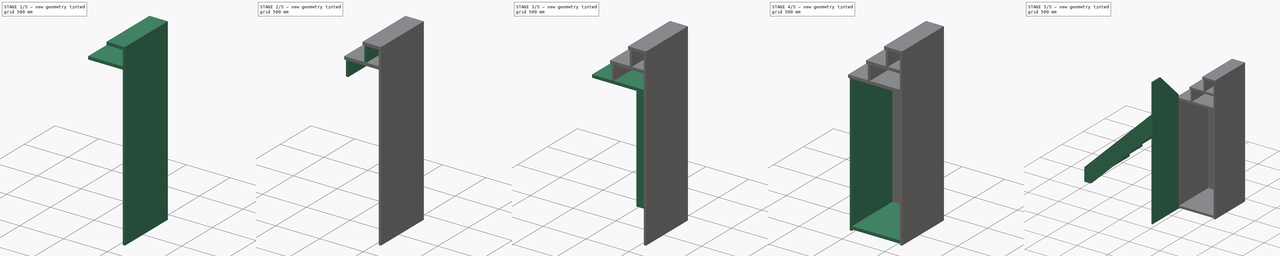
[diagram: build sequence overview — one tinted view per stage of 5, left to right]
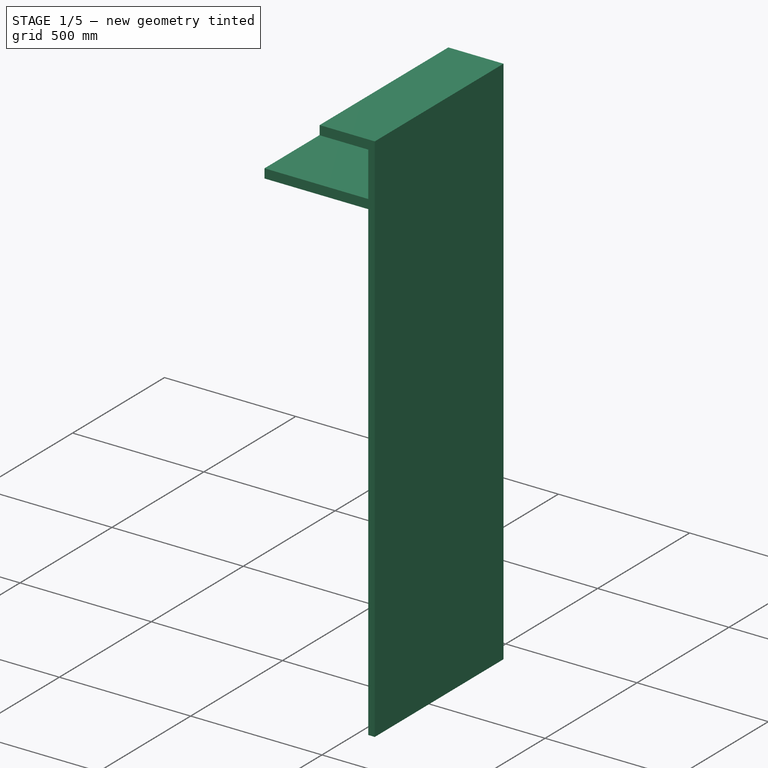
[diagram: stage 1 of 5 — iso view after this stage's code; geometry added in this stage tinted green]
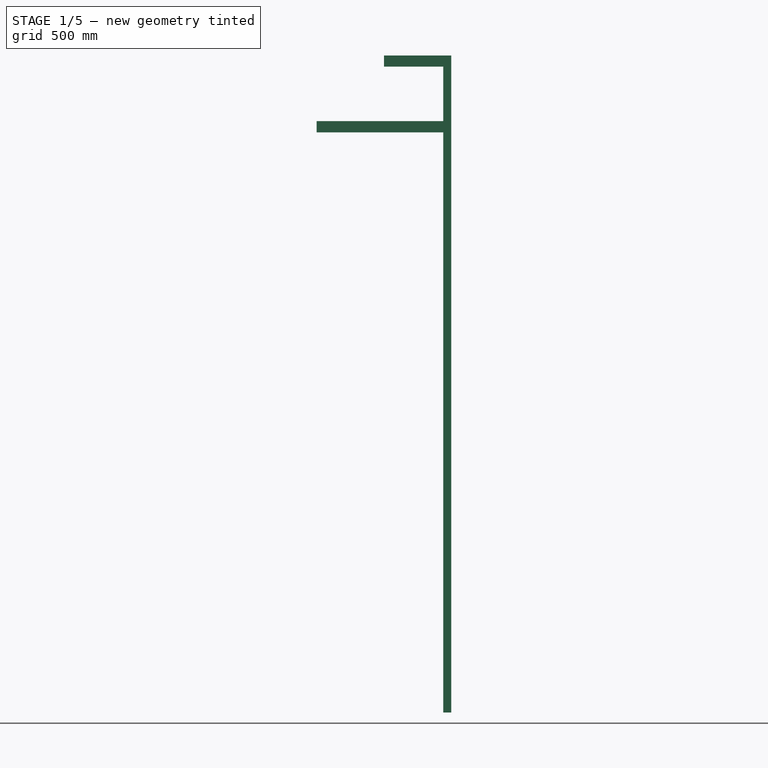
[diagram: stage 1 of 5 — front view after this stage's code; geometry added in this stage tinted green]
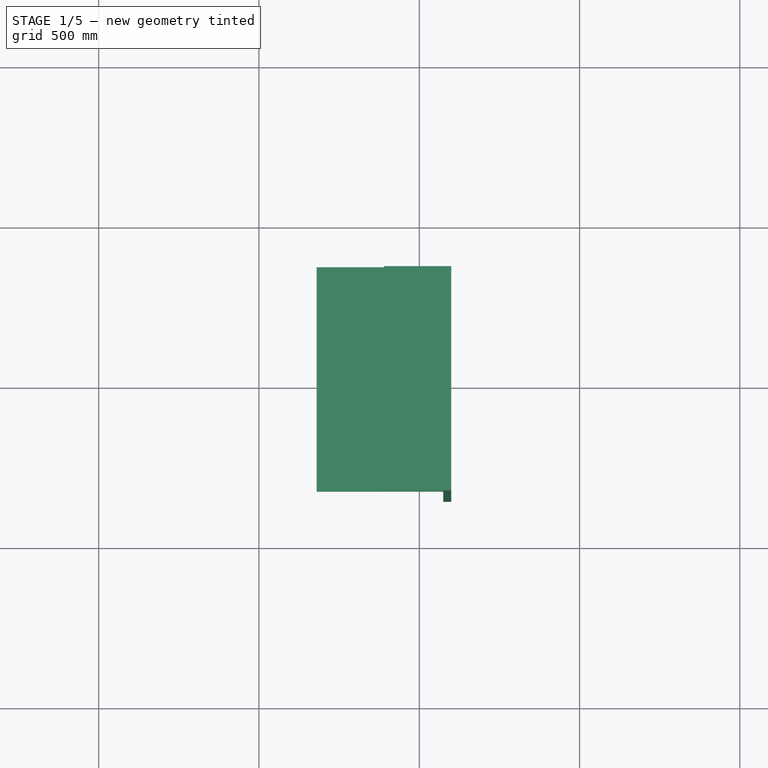
[diagram: stage 1 of 5 — top view after this stage's code; geometry added in this stage tinted green]
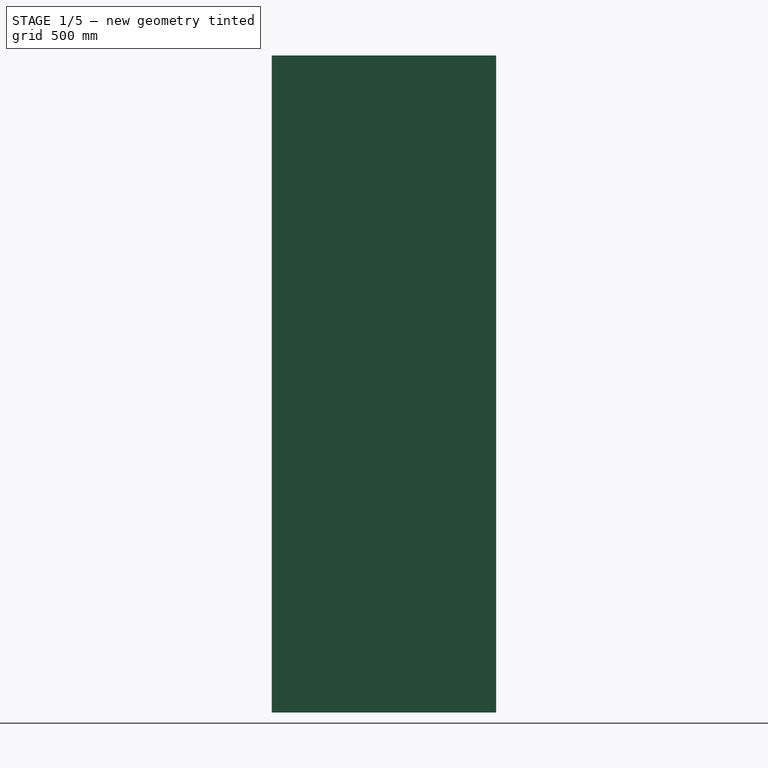
[diagram: stage 1 of 5 — right view after this stage's code; geometry added in this stage tinted green]
FCSTD DOCUMENT  (FreeCAD 0.17R11114 (Git))
Label: fridge_box_panels
License: All rights reserved
LicenseURL: http://en.wikipedia.org/wiki/All_rights_reserved
objects: Part::FeaturePython×24, TechDraw::DrawViewDimension×24, Part::Part2DObjectPython×11, App::Annotation×10, TechDraw::DrawViewAnnotation×10, Part::Extrusion×9, TechDraw::DrawGeomHatch×3, App::DocumentObjectGroup×2, TechDraw::DrawViewMulti×2, Sketcher::SketchObject×1, PartDesign::Body×1, TechDraw::DrawSVGTemplate×1, App::DocumentObjectGroupPython×1, TechDraw::DrawViewDraft×1, Part::Compound×1, TechDraw::DrawPage×1
note: 47 computed .brp shape members not serialized (recipe doc carries the construction recipe); baked Part::Feature solids carry a one-line shape summary decoded from their .brp

FEATURE [Part::Extrusion] Extrude002
  Base = -> DWire001
  Dir = (0,1,0)
  DirMode = 0
  FaceMakerClass = Part::FaceMakerBullseye
  LengthFwd = 345
  LengthRev = 355
  Solid = false
  Symmetric = false
FEATURE [Part::Extrusion] Extrude005
  Base = -> Rectangle
  Dir = (0,1,0)
  DirMode = 0
  FaceMakerClass = Part::FaceMakerBullseye
  LengthFwd = 345
  LengthRev = 355
  Solid = false
  Symmetric = false
FEATURE [Part::Extrusion] Extrude006
  Base = -> DWire007
  Dir = (0,1,0)
  DirMode = 0
  FaceMakerClass = Part::FaceMakerBullseye
  LengthFwd = 345
  LengthRev = 355
  Solid = false
  Symmetric = false
FEATURE [Part::FeaturePython] Panel007  label="step_last"  # WARN: FeaturePython — macro-defined, semantics opaque (R4)
  Area = 0
  Base = -> Extrude005
  FaceMaker = 0
  HorizontalArea = 0
  Length = 0
  MoveWithHost = false
  Normal = (0,0,1)
  PerimeterLength = 0
  Role = 0
  Sheets = 1
  Thickness = 10
  VerticalArea = 0
  WaveDirection = 0
  WaveHeight = 0
  WaveLength = 0
  WaveType = 0
  Width = 0
FEATURE [Part::FeaturePython] Panel008  label="step_middle"  # WARN: FeaturePython — macro-defined, semantics opaque (R4)
  Area = 0
  Base = -> Extrude002
  FaceMaker = 0
  HorizontalArea = 0
  Length = 0
  MoveWithHost = false
  Normal = (0,0,1)
  PerimeterLength = 0
  Role = 0
  Sheets = 1
  Thickness = 10
  VerticalArea = 0
  WaveDirection = 0
  WaveHeight = 0
  WaveLength = 0
  WaveType = 0
  Width = 0
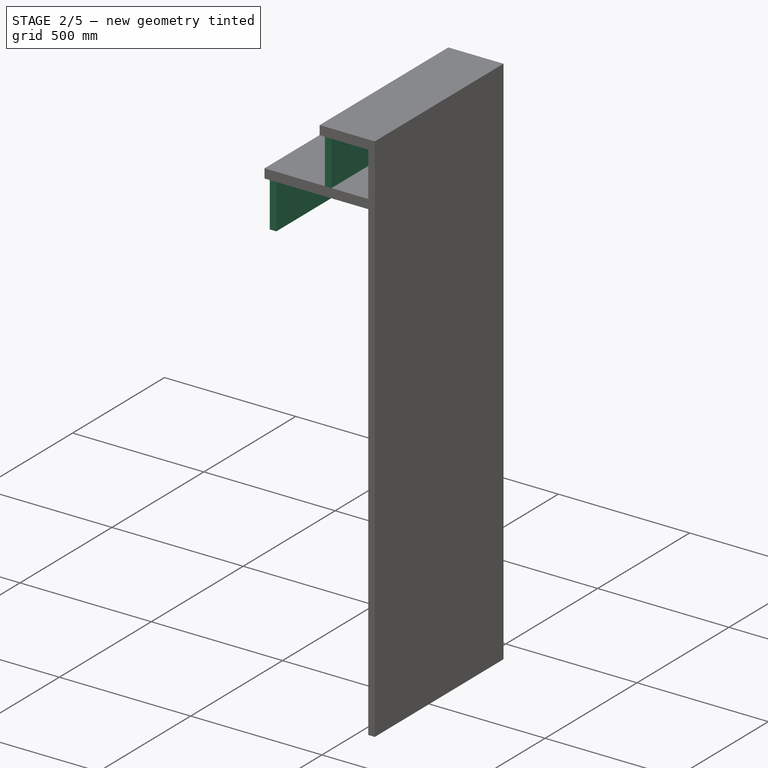
[diagram: stage 2 of 5 — iso view after this stage's code; geometry added in this stage tinted green]
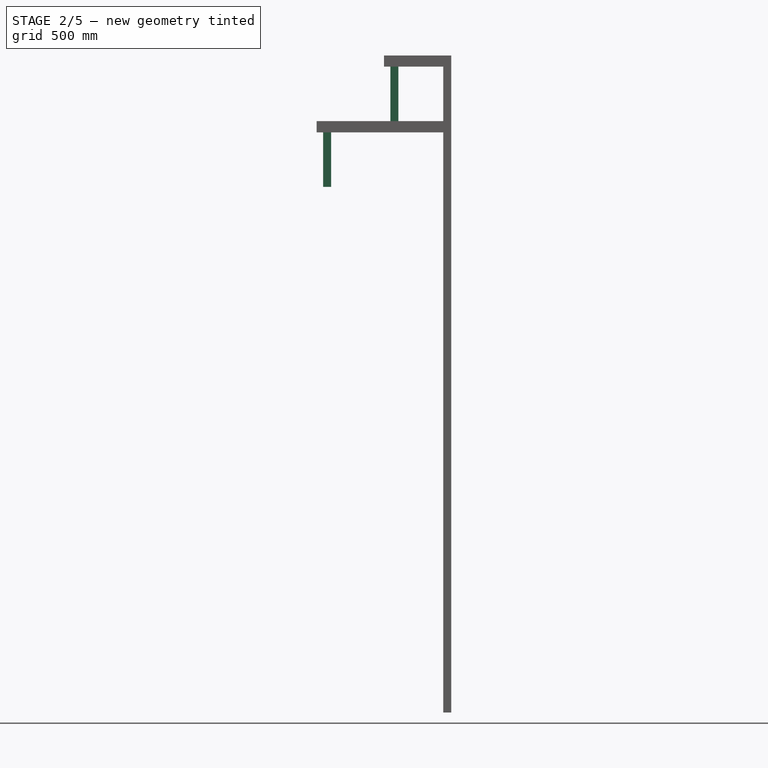
[diagram: stage 2 of 5 — front view after this stage's code; geometry added in this stage tinted green]
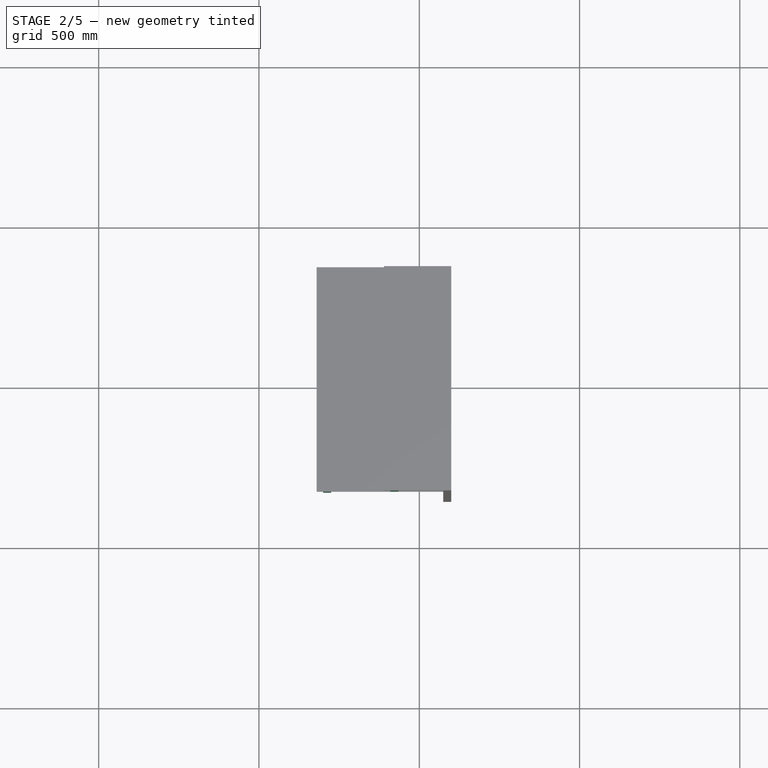
[diagram: stage 2 of 5 — top view after this stage's code; geometry added in this stage tinted green]
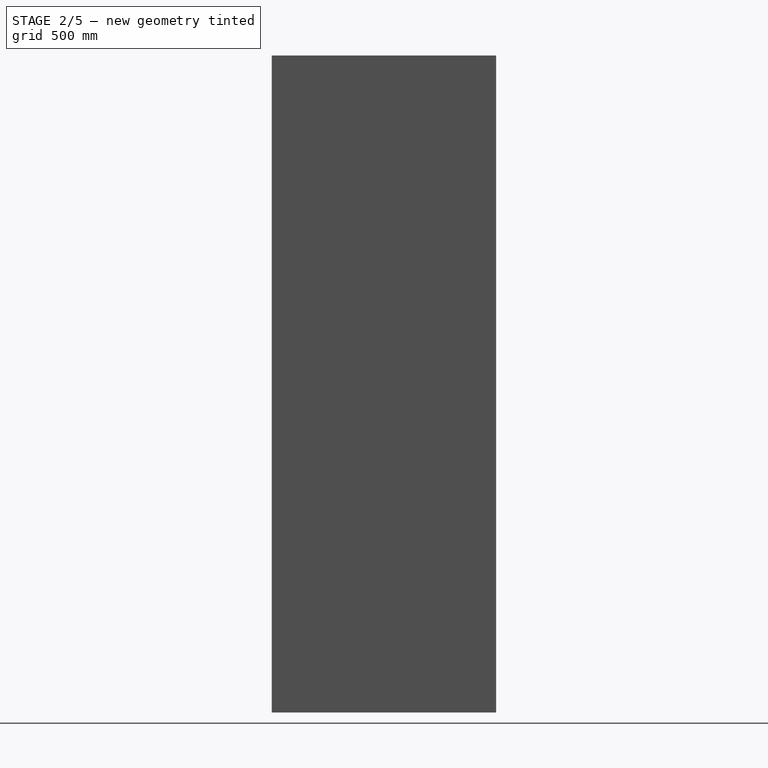
[diagram: stage 2 of 5 — right view after this stage's code; geometry added in this stage tinted green]
FEATURE [Part::Extrusion] Extrude003
  Base = -> DWire004
  Dir = (0,1,0)
  DirMode = 0
  FaceMakerClass = Part::FaceMakerBullseye
  LengthFwd = 345
  LengthRev = 355
  Solid = false
  Symmetric = false
FEATURE [Part::Extrusion] Extrude004
  Base = -> DWire005
  Dir = (0,1,0)
  DirMode = 0
  FaceMakerClass = Part::FaceMakerBullseye
  LengthFwd = 345
  LengthRev = 355
  Solid = false
  Symmetric = false
FEATURE [Part::FeaturePython] Panel005  label="raise_top"  # WARN: FeaturePython — macro-defined, semantics opaque (R4)
  Area = 0
  Base = -> Extrude003
  FaceMaker = 0
  HorizontalArea = 0
  Length = 0
  MoveWithHost = false
  Normal = (1,0,0)
  PerimeterLength = 0
  Role = 0
  Sheets = 1
  Thickness = 10
  VerticalArea = 0
  WaveDirection = 0
  WaveHeight = 0
  WaveLength = 0
  WaveType = 0
  Width = 0
FEATURE [Part::FeaturePython] Panel006  label="side_kitchen"  # WARN: FeaturePython — macro-defined, semantics opaque (R4)
  Area = 0
  Base = -> Extrude006
  FaceMaker = 0
  HorizontalArea = 0
  Length = 0
  MoveWithHost = false
  Normal = (1,0,0)
  PerimeterLength = 0
  Role = 0
  Sheets = 1
  Thickness = 10
  VerticalArea = 0
  WaveDirection = 0
  WaveHeight = 0
  WaveLength = 0
  WaveType = 0
  Width = 0
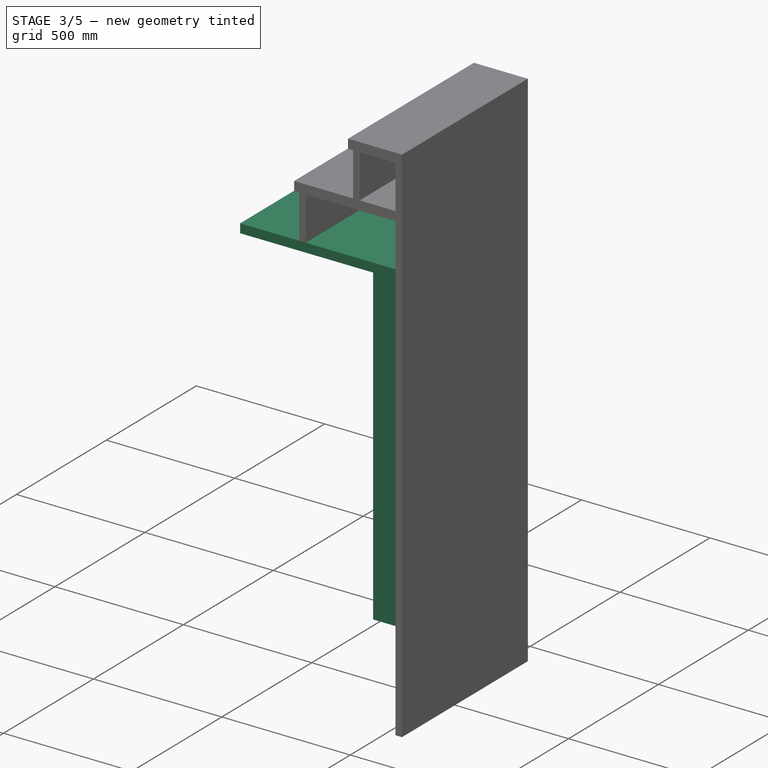
[diagram: stage 3 of 5 — iso view after this stage's code; geometry added in this stage tinted green]
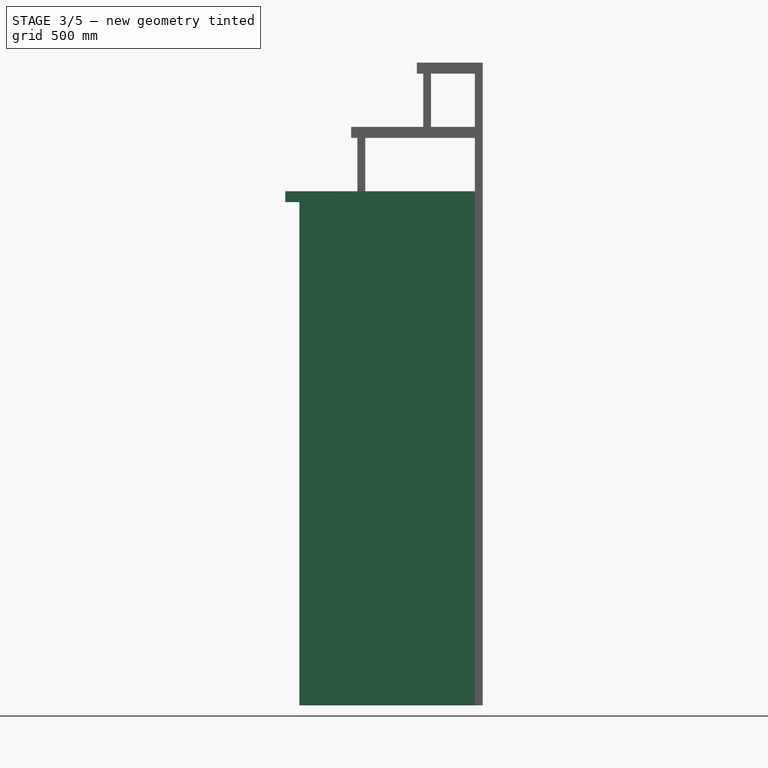
[diagram: stage 3 of 5 — front view after this stage's code; geometry added in this stage tinted green]
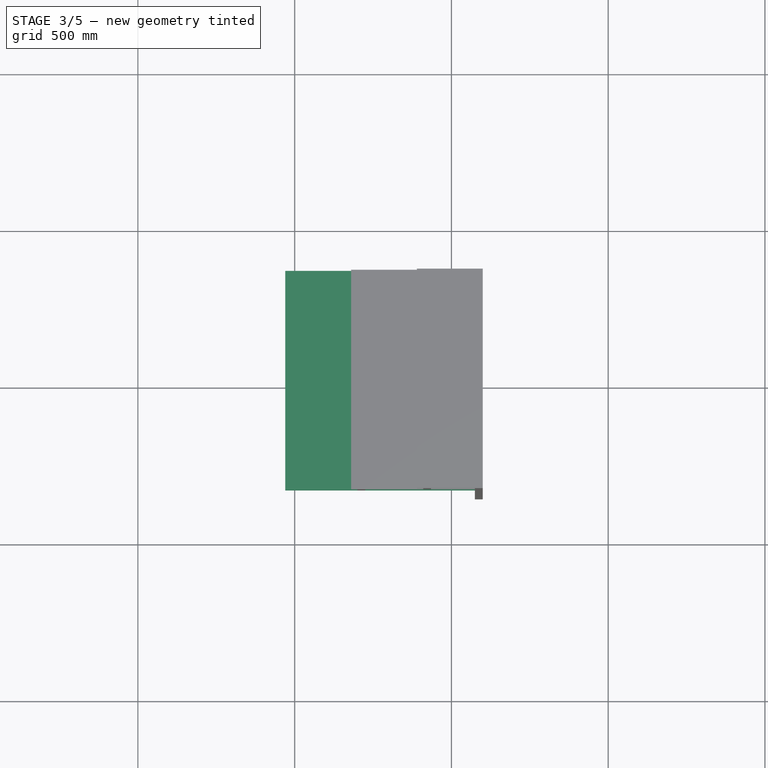
[diagram: stage 3 of 5 — top view after this stage's code; geometry added in this stage tinted green]
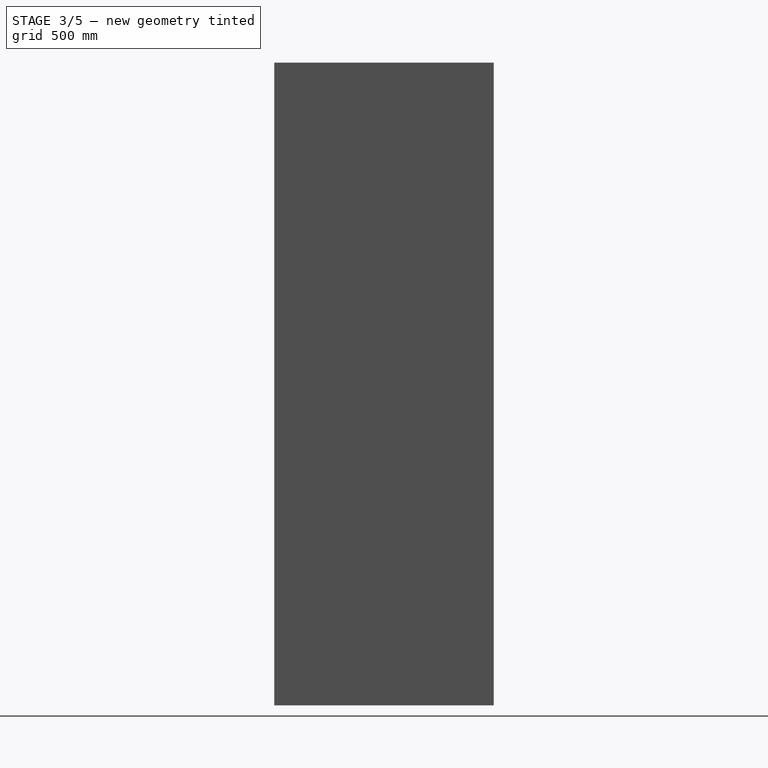
[diagram: stage 3 of 5 — right view after this stage's code; geometry added in this stage tinted green]
FEATURE [Part::Part2DObjectPython] DWire007  # Draft 2D object (typed FeaturePython)
  ChamferSize = 0
  Closed = true
  End = (2100,1e-12,2015)
  FilletRadius = 0
  Length = 4080
  MakeFace = true
  Points = (5) [(2100,4.4742e-13,2015),(2100,0,0),(2075,0,0),(2075,4.4742e-13,2015),(2100,1.37296e-12,2015)]
  Start = (2100,0,2015)
  Subdivisions = 0
FEATURE [Part::Extrusion] Extrude001
  Base = -> DWire
  Dir = (0,1,0)
  DirMode = 0
  FaceMakerClass = Part::FaceMakerBullseye
  LengthFwd = 345
  LengthRev = 355
  Solid = false
  Symmetric = false
FEATURE [Part::Part2DObjectPython] Rectangle002  # Draft 2D object (typed FeaturePython)
  ChamferSize = 0
  Columns = 1
  FilletRadius = 0
  Height = 1605
  Length = 560
  MakeFace = true
  Placement = pos=(1515,345,1605) rot=(-1,0,0;1.5708rad)
  Rows = 1
  Support = -> [Extrude001]
FEATURE [Part::Extrusion] Extrude007
  Base = -> Rectangle002
  Dir = (0,-1,0)
  DirMode = 0
  FaceMakerClass = Part::FaceMakerBullseye
  LengthFwd = 25
  LengthRev = 0
  Solid = false
  Symmetric = false
FEATURE [Part::FeaturePython] Panel002  label="side_back"  # WARN: FeaturePython — macro-defined, semantics opaque (R4)
  Area = 0
  Base = -> Extrude007
  FaceMaker = 0
  HorizontalArea = 0
  Length = 0
  MoveWithHost = false
  Normal = (0,1,0)
  PerimeterLength = 0
  Role = 0
  Sheets = 1
  Thickness = 10
  VerticalArea = 0
  WaveDirection = 0
  WaveHeight = 0
  WaveLength = 0
  WaveType = 0
  Width = 0
FEATURE [Part::FeaturePython] Panel003  label="step_roof"  # WARN: FeaturePython — macro-defined, semantics opaque (R4)
  Area = 0
  Base = -> Extrude001
  FaceMaker = 0
  HorizontalArea = 0
  Length = 0
  MoveWithHost = false
  Normal = (0,0,1)
  PerimeterLength = 0
  Role = 0
  Sheets = 1
  Thickness = 10
  VerticalArea = 0
  WaveDirection = 0
  WaveHeight = 0
  WaveLength = 0
  WaveType = 0
  Width = 0
FEATURE [Part::FeaturePython] Panel004  label="raise_bottom"  # WARN: FeaturePython — macro-defined, semantics opaque (R4)
  Area = 0
  Base = -> Extrude004
  FaceMaker = 0
  HorizontalArea = 0
  Length = 0
  MoveWithHost = false
  Normal = (1,0,0)
  PerimeterLength = 0
  Role = 0
  Sheets = 1
  Thickness = 10
  VerticalArea = 0
  WaveDirection = 0
  WaveHeight = 0
  WaveLength = 0
  WaveType = 0
  Width = 0
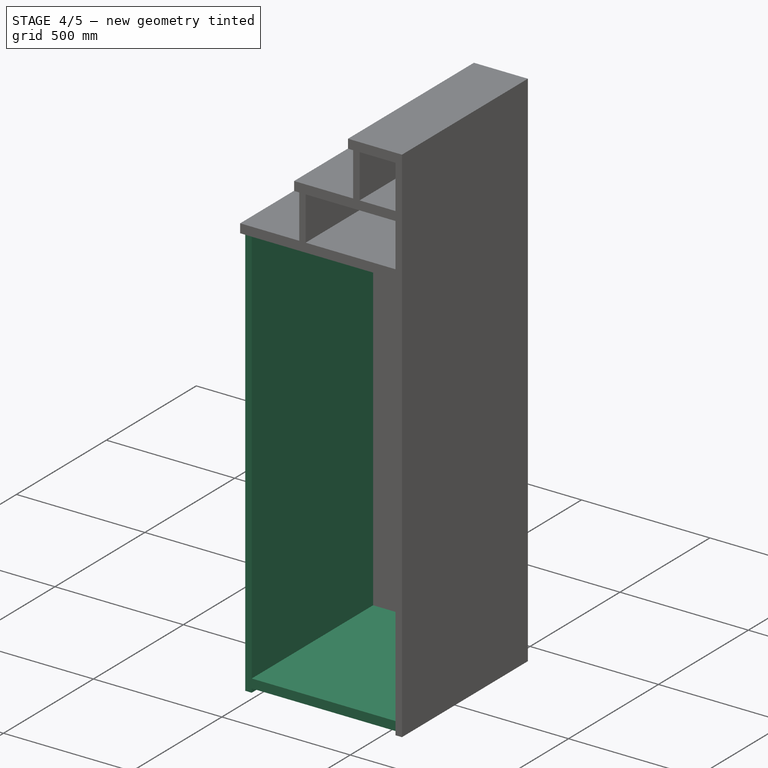
[diagram: stage 4 of 5 — iso view after this stage's code; geometry added in this stage tinted green]
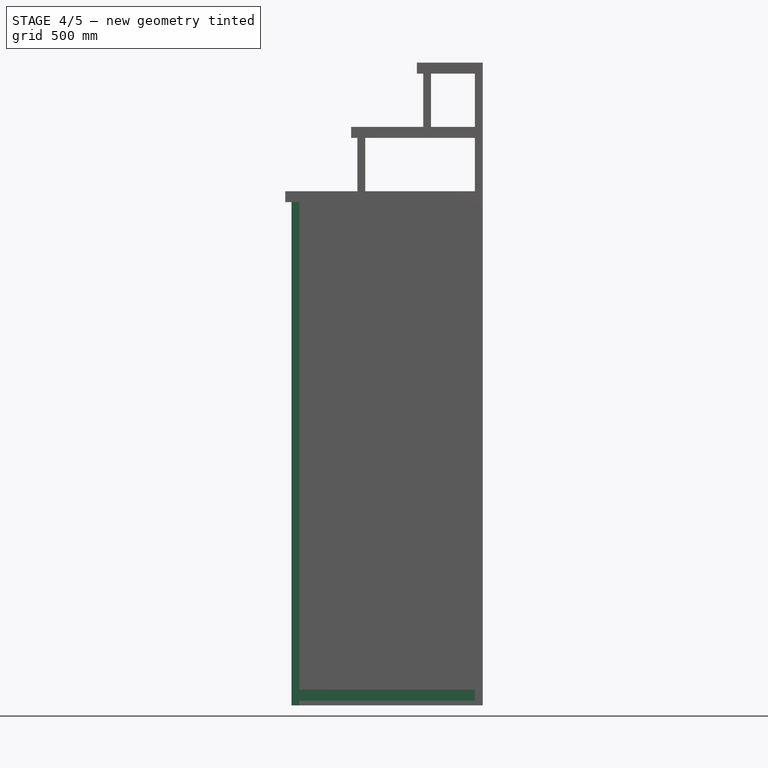
[diagram: stage 4 of 5 — front view after this stage's code; geometry added in this stage tinted green]
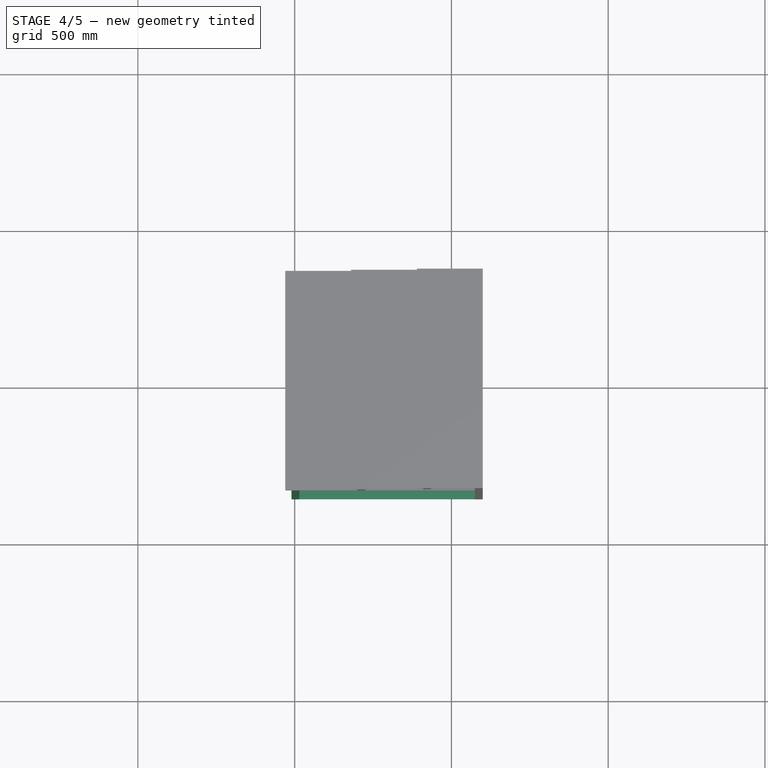
[diagram: stage 4 of 5 — top view after this stage's code; geometry added in this stage tinted green]
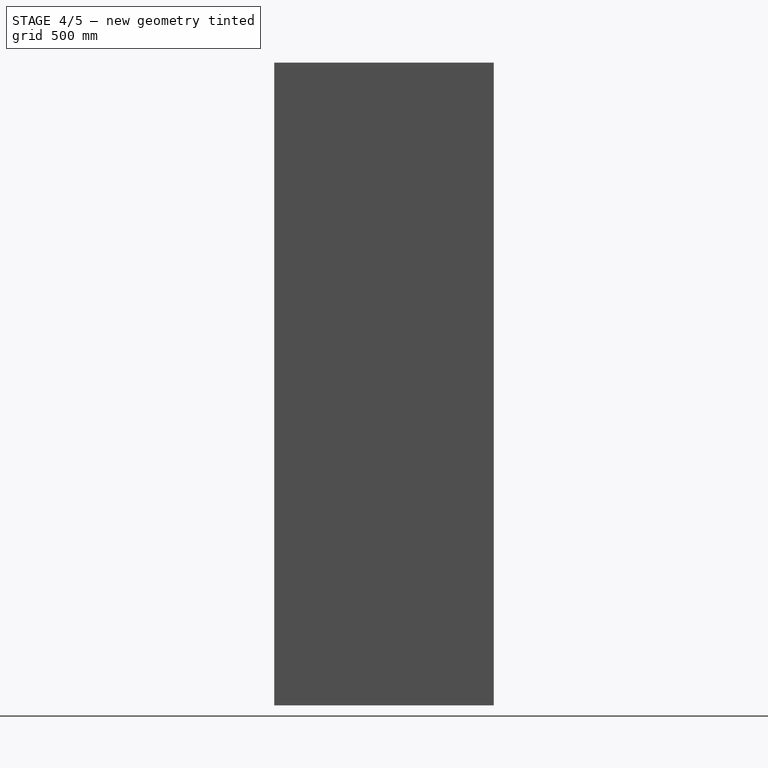
[diagram: stage 4 of 5 — right view after this stage's code; geometry added in this stage tinted green]
FEATURE [Part::Part2DObjectPython] Rectangle001  # Draft 2D object (typed FeaturePython)
  ChamferSize = 0
  Columns = 1
  FilletRadius = 0
  Height = 1605
  Length = 25
  MakeFace = true
  Placement = pos=(1490,1e-12,1605) rot=(-1,0,0;1.5708rad)
  Rows = 1
FEATURE [Part::Extrusion] Extrude
  Base = -> Rectangle001
  Dir = (0,-1,0)
  DirMode = 0
  FaceMakerClass = Part::FaceMakerBullseye
  LengthFwd = 355
  LengthRev = 345
  Solid = false
  Symmetric = false
FEATURE [Part::Extrusion] Extrude008
  Base = -> DWire006
  Dir = (0,1,0)
  DirMode = 0
  FaceMakerClass = Part::FaceMakerBullseye
  LengthFwd = 320
  LengthRev = 355
  Solid = false
  Symmetric = false
FEATURE [Part::FeaturePython] Panel  label="side_stair"  # WARN: FeaturePython — macro-defined, semantics opaque (R4)
  Area = 0
  Base = -> Extrude
  Description = description
  FaceMaker = 0
  HorizontalArea = 0
  Length = 0
  MoveWithHost = false
  Normal = (1,0,0)
  PerimeterLength = 0
  Role = 0
  Sheets = 1
  Tag = tag
  Thickness = 10
  VerticalArea = 0
  WaveDirection = 0
  WaveHeight = 0
  WaveLength = 0
  WaveType = 0
  Width = 0
FEATURE [Part::FeaturePython] Panel001  label="side_floor"  # WARN: FeaturePython — macro-defined, semantics opaque (R4)
  Area = 0
  Base = -> Extrude008
  FaceMaker = 0
  HorizontalArea = 0
  Length = 0
  MoveWithHost = false
  Normal = (0,0,1)
  PerimeterLength = 0
  Role = 0
  Sheets = 1
  Thickness = 10
  VerticalArea = 0
  WaveDirection = 0
  WaveHeight = 0
  WaveLength = 0
  WaveType = 0
  Width = 0
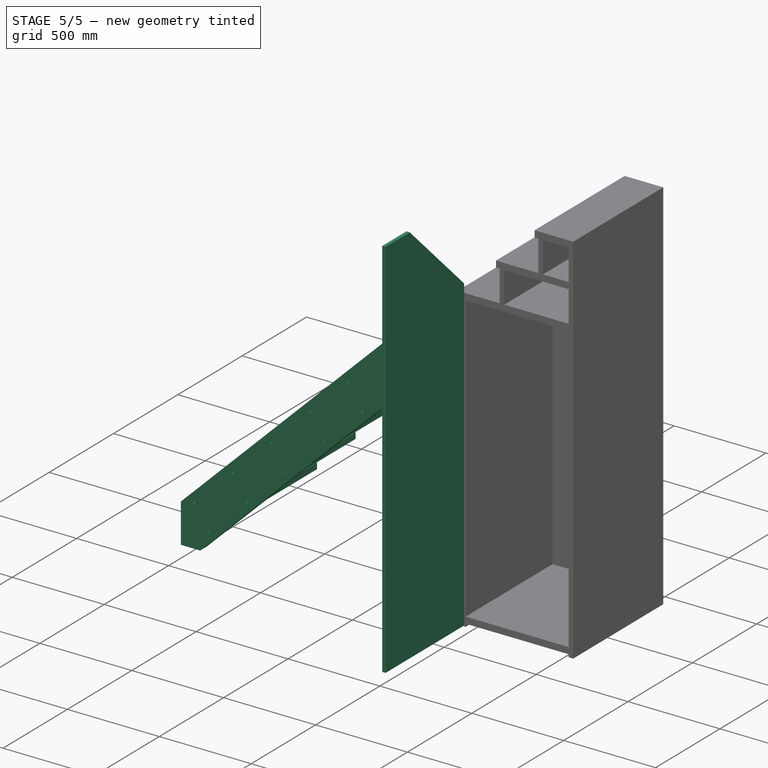
[diagram: stage 5 of 5 — iso view after this stage's code; geometry added in this stage tinted green]
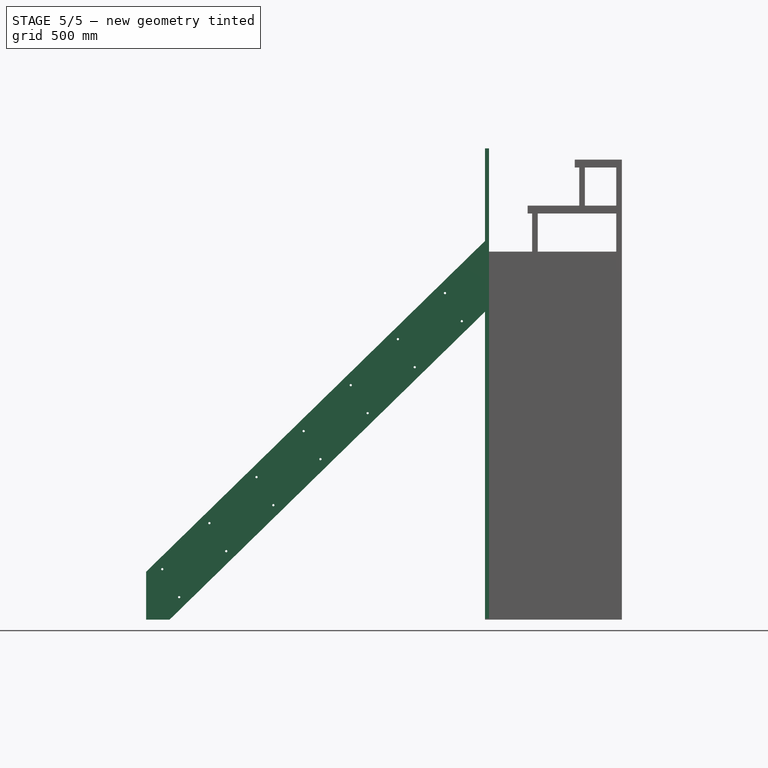
[diagram: stage 5 of 5 — front view after this stage's code; geometry added in this stage tinted green]
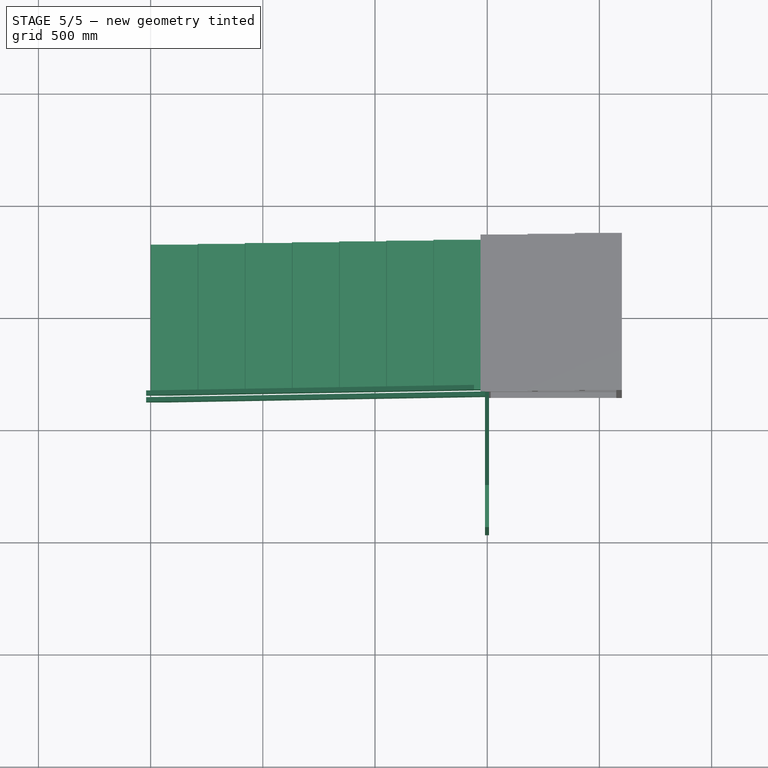
[diagram: stage 5 of 5 — top view after this stage's code; geometry added in this stage tinted green]
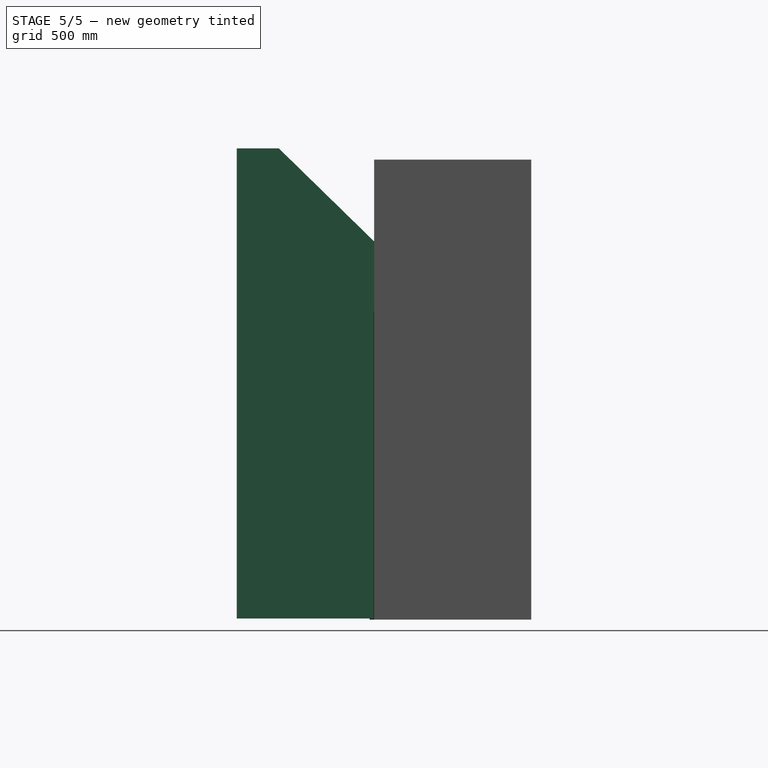
[diagram: stage 5 of 5 — right view after this stage's code; geometry added in this stage tinted green]
FEATURE [Part::FeaturePython] stair_profile_01  # a2plus imported part (geometry in sourceFile) (typed FeaturePython)
  fixedPosition = true
  sourceFile = stair_profile.fcstd
  timeLastImport = 1.4938e+09
  updateColors = true
FEATURE [Sketcher::SketchObject] Sketch001
  Placement = pos=(0,0,0) rot=(1,0,0;1.5708rad)
  sketch-geometry (37):
    g0: LineSegment [constr] StartX=0 StartY=0 StartZ=0 EndX=2100 EndY=0 EndZ=0
    g1: LineSegment [constr] StartX=1490 StartY=1605 StartZ=0 EndX=1490 EndY=0 EndZ=0
    g2: LineSegment StartX=1470 StartY=1640 StartZ=0 EndX=2075 EndY=1640 EndZ=0
    g3: LineSegment StartX=2075 StartY=1640 StartZ=0 EndX=2075 EndY=1605 EndZ=0
    g4: LineSegment StartX=2075 StartY=1605 StartZ=0 EndX=1470 EndY=1605 EndZ=0
    g5: LineSegment StartX=1470 StartY=1605 StartZ=0 EndX=1470 EndY=1640 EndZ=0
    g6: LineSegment StartX=1680 StartY=1845 StartZ=0 EndX=2075 EndY=1845 EndZ=0
    g7: LineSegment StartX=2075 StartY=1845 StartZ=0 EndX=2075 EndY=1810 EndZ=0
    g8: LineSegment StartX=2075 StartY=1810 StartZ=0 EndX=1680 EndY=1810 EndZ=0
    g9: LineSegment StartX=1680 StartY=1810 StartZ=0 EndX=1680 EndY=1845 EndZ=0
    g10: LineSegment StartX=1890 StartY=2050 StartZ=0 EndX=2100 EndY=2050 EndZ=0
    g11: LineSegment StartX=2100 StartY=2050 StartZ=0 EndX=2100 EndY=2015 EndZ=0
    g12: LineSegment StartX=2100 StartY=2015 StartZ=0 EndX=1890 EndY=2015 EndZ=0
    g13: LineSegment StartX=1890 StartY=2015 StartZ=0 EndX=1890 EndY=2050 EndZ=0
    g14: LineSegment [constr] StartX=2100 StartY=2105 StartZ=0 EndX=3350 EndY=2105 EndZ=0
    g15: LineSegment [constr] StartX=3350 StartY=2260 StartZ=0 EndX=2100 EndY=2260 EndZ=0
    g16: LineSegment [constr] StartX=2100 StartY=2260 StartZ=0 EndX=2100 EndY=2105 EndZ=0
    g17: LineSegment StartX=2100 StartY=2015 StartZ=0 EndX=2075 EndY=2015 EndZ=0
    g18: LineSegment StartX=2075 StartY=2015 StartZ=0 EndX=2075 EndY=0 EndZ=0
    g19: LineSegment StartX=2075 StartY=0 StartZ=0 EndX=2100 EndY=0 EndZ=0
    g20: LineSegment StartX=2100 StartY=0 StartZ=0 EndX=2100 EndY=2015 EndZ=0
    g21: LineSegment StartX=1490 StartY=0 StartZ=0 EndX=1515 EndY=0 EndZ=0
    g22: LineSegment StartX=1515 StartY=0 StartZ=0 EndX=1515 EndY=1605 EndZ=0
    g23: LineSegment StartX=1515 StartY=1605 StartZ=0 EndX=1490 EndY=1605 EndZ=0
    g24: LineSegment StartX=1490 StartY=1605 StartZ=0 EndX=1490 EndY=0 EndZ=0
    g25: LineSegment StartX=1910 StartY=2015 StartZ=0 EndX=1935 EndY=2015 EndZ=0
    g26: LineSegment StartX=1935 StartY=2015 StartZ=0 EndX=1935 EndY=1845 EndZ=0
    g27: LineSegment StartX=1935 StartY=1845 StartZ=0 EndX=1910 EndY=1845 EndZ=0
    g28: LineSegment StartX=1910 StartY=1845 StartZ=0 EndX=1910 EndY=2015 EndZ=0
    g29: LineSegment StartX=1700 StartY=1810 StartZ=0 EndX=1725 EndY=1810 EndZ=0
    g30: LineSegment StartX=1725 StartY=1810 StartZ=0 EndX=1725 EndY=1640 EndZ=0
    g31: LineSegment StartX=1725 StartY=1640 StartZ=0 EndX=1700 EndY=1640 EndZ=0
    g32: LineSegment StartX=1700 StartY=1640 StartZ=0 EndX=1700 EndY=1810 EndZ=0
    g33: LineSegment StartX=1515 StartY=50 StartZ=0 EndX=2075 EndY=50 EndZ=0
    g34: LineSegment StartX=2075 StartY=50 StartZ=0 EndX=2075 EndY=15 EndZ=0
    g35: LineSegment StartX=2075 StartY=15 StartZ=0 EndX=1515 EndY=15 EndZ=0
    g36: LineSegment StartX=1515 StartY=15 StartZ=0 EndX=1515 EndY=50 EndZ=0
  constraints (114):
    c: Vertical(g1)
    c: Horizontal(g2)
    c: Coincident(g2,g3)
    c: Vertical(g3)
    c: Coincident(g3,g4)
    c: Horizontal(g4)
    c: Coincident(g4,g5)
    c: Vertical(g5)
    c: Coincident(g5,g2)
    c: Horizontal(g6)
    c: Coincident(g6,g7)
    c: Vertical(g7)
    c: Coincident(g7,g8)
    c: Horizontal(g8)
    c: Coincident(g8,g9)
    c: Vertical(g9)
    c: Coincident(g9,g6)
    c: Horizontal(g10)
    c: Coincident(g10,g11)
    c: Vertical(g11)
    c: Coincident(g11,g12)
    c: Horizontal(g12)
    c: Coincident(g12,g13)
    c: Vertical(g13)
    c: Coincident(g13,g10)
    c: Horizontal(g14)
    c: Horizontal(g15)
    c: Coincident(g15,g16)
    c: Vertical(g16)
    c: Coincident(g16,g14)
    c: Coincident(g-1,g0)
    c: Horizontal(g0)
    c: DistanceX(g-1,g15) = 2100
    c: DistanceY(g14,g15) = 155
    c: PointOnObject(g0,g16)
    c: DistanceX(g15,g15) = 1250
    c: DistanceY(g0,g15) = 2260
    c: DistanceX(g-1,g1) = 1490
    c: PointOnObject(g1,g0)
    c: PointOnObject(g10,g16)
    c: DistanceY(g13,g13) = 35
    c: DistanceY(g9,g9) = 35
    c: DistanceY(g5,g5) = 35
    c: Coincident(g17,g18)
    c: Coincident(g18,g19)
    c: Coincident(g19,g20)
    c: Coincident(g20,g17)
    c: Horizontal(g17)
    c: Horizontal(g19)
    c: Vertical(g18)
    c: Vertical(g20)
    c: PointOnObject(g18,g0)
    c: DistanceX(g19,g19) = 25
    c: Coincident(g17,g11)
    c: Coincident(g21,g22)
    c: Coincident(g22,g23)
    c: Coincident(g23,g24)
    c: Coincident(g24,g21)
    c: Horizontal(g21)
    c: Horizontal(g23)
    c: Vertical(g22)
    c: Vertical(g24)
    c: DistanceX(g21,g21) = 25
    c: Coincident(g21,g1)
    c: DistanceX(g2) = 1470
    c: DistanceY(g2) = 1640
    c: PointOnObject(g23,g4)
    c: PointOnObject(g2,g18)
    c: PointOnObject(g6,g18)
    c: DistanceY(g2,g6) = 205
    c: DistanceY(g6,g10) = 205
    c: DistanceX(g2,g6) = 210
    c: DistanceX(g10,g10) = 210
    c: DistanceX(g6,g10) = 210
    c: DistanceX(g15,g14) = 0
    c: PointOnObject(g1,g4)
    c: Coincident(g25,g26)
    c: Coincident(g26,g27)
    c: Coincident(g27,g28)
    c: Coincident(g28,g25)
    c: Horizontal(g25)
    c: Horizontal(g27)
    c: Vertical(g26)
    c: Vertical(g28)
    c: Coincident(g29,g30)
    c: Coincident(g30,g31)
    c: Coincident(g31,g32)
    c: Coincident(g32,g29)
    c: Horizontal(g29)
    c: Horizontal(g31)
    c: Vertical(g30)
    c: Vertical(g32)
    c: DistanceX(g27,g27) = 25
    c: DistanceX(g31,g31) = 25
    c: PointOnObject(g29,g8)
    c: PointOnObject(g30,g2)
    c: PointOnObject(g26,g6)
    c: PointOnObject(g25,g12)
    c: DistanceX(g12,g25) = 20
    c: DistanceX(g8,g29) = 20
    c: Coincident(g33,g34)
    c: Coincident(g34,g35)
    c: Coincident(g35,g36)
    c: Coincident(g36,g33)
    c: Horizontal(g33)
    c: Horizontal(g35)
    c: Vertical(g34)
    c: Vertical(g36)
    c: PointOnObject(g33,g22)
    c: PointOnObject(g33,g18)
    c: DistanceY(g35,g33) = 35
    c: DistanceY(g21,g35) = 15
    c: DistanceY(g33,g3) = 1555
    c: DistanceX(g22,g3) = 560
FEATURE [PartDesign::Body] Body
  Group = -> [Sketch001]
  Origin = -> BodyOrigin
FEATURE [Part::Part2DObjectPython] DWire  # Draft 2D object (typed FeaturePython)
  ChamferSize = 0
  Closed = true
  End = (1470,1e-12,1605)
  FilletRadius = 0
  Length = 1280
  MakeFace = true
  Points = (4) [(1470,1.09215e-12,1640),(2075,1.09215e-12,1640),(2075,1.06938e-12,1605),(1470,1.06938e-12,1605)]
  Start = (1470,1e-12,1640)
  Subdivisions = 0
FEATURE [Part::Part2DObjectPython] DWire001  # Draft 2D object (typed FeaturePython)
  ChamferSize = 0
  Closed = true
  End = (1680,1e-12,1810)
  FilletRadius = 0
  Length = 860
  MakeFace = true
  Points = (4) [(1680,1.22867e-12,1845),(2075,1.22867e-12,1845),(2075,1.2059e-12,1810),(1680,1.2059e-12,1810)]
  Start = (1680,1e-12,1845)
  Subdivisions = 0
FEATURE [Part::Part2DObjectPython] DWire004  # Draft 2D object (typed FeaturePython)
  ChamferSize = 0
  Closed = true
  End = (1910,1e-12,1845)
  FilletRadius = 0
  Length = 390
  MakeFace = true
  Points = (4) [(1910,1.34242e-12,2015),(1935,1.34242e-12,2015),(1935,1.22867e-12,1845),(1910,1.22867e-12,1845)]
  Start = (1910,1e-12,2015)
  Subdivisions = 0
FEATURE [Part::Part2DObjectPython] DWire005  # Draft 2D object (typed FeaturePython)
  ChamferSize = 0
  Closed = true
  End = (1700,1e-12,1640)
  FilletRadius = 0
  Length = 390
  MakeFace = true
  Points = (4) [(1700,1.2059e-12,1810),(1725,1.2059e-12,1810),(1725,1.09215e-12,1640),(1700,1.09215e-12,1640)]
  Start = (1700,1e-12,1810)
  Subdivisions = 0
FEATURE [Part::Part2DObjectPython] DWire006  # Draft 2D object (typed FeaturePython)
  ChamferSize = 0
  Closed = true
  End = (1515,0,15)
  FilletRadius = 0
  Length = 1190
  MakeFace = true
  Points = (4) [(1515,3.31022e-14,50),(2075,3.31022e-14,50),(2075,1.03307e-14,15),(1515,1.03307e-14,15)]
  Start = (1515,0,50)
  Subdivisions = 0
FEATURE [Part::Part2DObjectPython] Rectangle  # Draft 2D object (typed FeaturePython)
  ChamferSize = 0
  Columns = 1
  FilletRadius = 0
  Height = 35
  Length = 210
  MakeFace = true
  Placement = pos=(1890,1e-12,2050) rot=(-1,0,0;1.5708rad)
  Rows = 1
FEATURE [Part::FeaturePython] step_01  # a2plus imported part (geometry in sourceFile) (typed FeaturePython)
  fixedPosition = false
  sourceFile = step.fcstd
  timeLastImport = 1.4938e+09
  updateColors = true
FEATURE [Part::FeaturePython] PanelView  label="View of side_stair"  # WARN: FeaturePython — macro-defined, semantics opaque (R4)
  FontFile = utilities/1CamBam_Stick_3.ttf
  Placement = pos=(-1969.35,-352.3,0) rot=(0,0,1;1.5708rad)
  Source = -> Panel
  TagPosition = (0,0,0)
  TagRotation = -90
  TagSize = 13
FEATURE [Part::FeaturePython] PanelView001  label="View of step_last"  # WARN: FeaturePython — macro-defined, semantics opaque (R4)
  FontFile = utilities/1CamBam_Stick_3.ttf
  Placement = pos=(500.65,1250.2,0) rot=(0,0,1;1.5708rad)
  Source = -> Panel007
  TagPosition = (0,0,0)
  TagRotation = -90
  TagSize = 20
FEATURE [Part::FeaturePython] PanelView002  label="View of raise_top"  # WARN: FeaturePython — macro-defined, semantics opaque (R4)
  FontFile = utilities/1CamBam_Stick_3.ttf
  Placement = pos=(-1969.35,1495.2,0) rot=(0,0,1;1.5708rad)
  Source = -> Panel005
  TagPosition = (0,0,0)
  TagRotation = -90
  TagSize = 20
FEATURE [Part::FeaturePython] PanelView003  label="View of side_back"  # WARN: FeaturePython — macro-defined, semantics opaque (R4)
  FontFile = utilities/1CamBam_Stick_3.ttf
  Placement = pos=(-1139.35,-352.3,0) rot=(0,0,1;0rad)
  Source = -> Panel002
  TagPosition = (0,0,0)
  TagRotation = 0
  TagSize = 13
  expr: TagSize = PanelView.TagSize
FEATURE [Part::FeaturePython] PanelView004  label="View of side_floor"  # WARN: FeaturePython — macro-defined, semantics opaque (R4)
  FontFile = utilities/1CamBam_Stick_3.ttf
  Placement = pos=(-1969.35,930.2,0) rot=(0,0,1;1.5708rad)
  Source = -> Panel001
  TagPosition = (0,0,0)
  TagRotation = -90
  TagSize = 20
FEATURE [Part::FeaturePython] PanelView005  label="View of side_kitchen"  # WARN: FeaturePython — macro-defined, semantics opaque (R4)
  FontFile = utilities/1CamBam_Stick_3.ttf
  Placement = pos=(-309.35,-147.3,0) rot=(0,0,1;1.5708rad)
  Source = -> Panel006
  TagPosition = (0,0,0)
  TagRotation = -90
  TagSize = 10
FEATURE [Part::FeaturePython] PanelView006  label="View of step_roof"  # WARN: FeaturePython — macro-defined, semantics opaque (R4)
  FontFile = utilities/1CamBam_Stick_3.ttf
  Placement = pos=(-1118.6,952.7,0) rot=(0,0,1;1.5708rad)
  Source = -> Panel003
  TagPosition = (0,0,0)
  TagRotation = -90
  TagSize = 20
FEATURE [Part::FeaturePython] PanelView007  label="View of step_middle"  # WARN: FeaturePython — macro-defined, semantics opaque (R4)
  FontFile = utilities/1CamBam_Stick_3.ttf
  Placement = pos=(-309.35,1257.7,0) rot=(0,0,1;1.5708rad)
  Source = -> Panel008
  TagPosition = (0,0,0)
  TagRotation = -90
  TagSize = 20
FEATURE [Part::FeaturePython] PanelView008  label="View of raise_bottom"  # WARN: FeaturePython — macro-defined, semantics opaque (R4)
  FontFile = utilities/1CamBam_Stick_3.ttf
  Placement = pos=(-1118.6,1540.2,0) rot=(0,0,1;1.5708rad)
  Source = -> Panel004
  TagPosition = (0,0,0)
  TagRotation = -90
  TagSize = 20
FEATURE [TechDraw::DrawSVGTemplate] Template
  EditableTexts = 5cm_scaled_value=50cm; Architect_2=MARZIA FILATRELLA; Architect_3=MARCO FERRARA; Board_no=A711; Date=3.5.2017; Date_1=3.5.2017; Drawing_title_2=BOX FRIGO; Drawing_title_3=ABACO ELEMENTI; Filename=FRIDGE_BOX_PANEL.FCSTD; Project_title_2=CASA VACANZE; Project_title_3=A SESTRI; Project_title_4=SCALA INTERNA; Revision=1.0; Scale=1:10; Sheet_of_sheets=2 DI 7 (nd); Size=A2; Version_1=1.0
  Height = 420
  Orientation = 1
  Width = 594
FEATURE [App::Annotation] Text
  LabelText = 8.FIANCO CUCINA | Listellare laminato bianco | sp. 25 mm
  Position = (-309.35,-147.3,0)
  expr: Position.y = PanelView005.Placement.Base.y / 1mm
  expr: Position.x = PanelView005.Placement.Base.x / 1mm
FEATURE [App::Annotation] Text001
  LabelText = 6.FONDO BOX | Listellare laminato bianco | sp. 25 mm
  Position = (-1139.35,-352.3,0)
  expr: Position.y = PanelView003.Placement.Base.y / 1mm
  expr: Position.x = PanelView003.Placement.Base.x / 1mm
FEATURE [App::Annotation] Text002
  LabelText = 3. FIANCO SCALA | Listellare laminato bianco | sp. 25 mm
  Position = (-1969.35,-352.3,0)
  expr: Position.y = PanelView.Placement.Base.y / 1mm
  expr: Position.x = PanelView.Placement.Base.x / 1mm
FEATURE [App::Annotation] Text003
  LabelText = 5.TETTO - GRADINO | Massello vernic. trasp. | sp. 35 mm
  Position = (-1118.6,952.7,0)
  expr: Position.y = PanelView006.Placement.Base.y / 1mm
  expr: Position.x = PanelView006.Placement.Base.x / 1mm
FEATURE [Part::Part2DObjectPython] Line  # Draft 2D object (typed FeaturePython)
  ChamferSize = 0
  Closed = false
  End = (850.65,-1344.65,0)
  FilletRadius = 0
  Length = 3170
  MakeFace = true
  Placement = pos=(0,-189.848,0) rot=(0,0,1;0rad)
  Points = (2) [(-2319.35,-1154.8,0),(850.65,-1154.8,0)]
  Start = (-2319.35,-1344.65,0)
  Subdivisions = 0
FEATURE [Part::Part2DObjectPython] Line001  # Draft 2D object (typed FeaturePython)
  ChamferSize = 0
  Closed = false
  End = (-2590.99,-1154.8,0)
  FilletRadius = 0
  Length = 2780
  MakeFace = true
  Placement = pos=(-959.144,0,0) rot=(0,0,1;0rad)
  Points = (2) [(-1631.85,1625.2,-2.27e-13),(-1631.85,-1154.8,0)]
  Start = (-2590.99,1625.2,0)
  Subdivisions = 0
FEATURE [App::Annotation] Text004
  LabelText = 7.GRADINO INTERMEDIO | Massello vernic. trasp. | sp. 35 mm
  Position = (-309.35,1257.7,0)
  expr: Position.y = PanelView007.Placement.Base.y / 1mm
  expr: Position.x = PanelView007.Placement.Base.x / 1mm
FEATURE [App::Annotation] Text005
  LabelText = 9. ULTIMO GRADINO | Massello vernic. trasp. | sp. 35 mm
  Position = (500.65,1250.2,0)
  expr: Position.y = PanelView001.Placement.Base.y / 1mm
  expr: Position.x = PanelView001.Placement.Base.x / 1mm
FEATURE [App::Annotation] Text006
  LabelText = 1. FRONTALINO SUPERIORE | Listellare laminato bianco | sp. 25 mm
  Position = (-1969.35,1495.2,0)
  expr: Position.y = PanelView002.Placement.Base.y / 1mm
  expr: Position.x = PanelView002.Placement.Base.x / 1mm
FEATURE [App::Annotation] Text007
  LabelText = 4.FRONTALINO INFERIORE | Listellare laminato bianco | sp. 25 mm
  Position = (-1118.6,1540.2,0)
  expr: Position.y = PanelView008.Placement.Base.y / 1mm
  expr: Position.x = PanelView008.Placement.Base.x / 1mm
FEATURE [App::Annotation] Text008
  LabelText = 2. BASE FRIGO | Listellare laminato bianco | sp. 25 mm (o altro spessore | adeguato)
  Position = (-1969.35,930.2,0)
  expr: Position.y = PanelView004.Placement.Base.y / 1mm
  expr: Position.x = PanelView004.Placement.Base.x / 1mm
FEATURE [Part::FeaturePython] double_beam_01  # a2plus imported part (geometry in sourceFile) (typed FeaturePython)
  fixedPosition = false
  sourceFile = double_beam.fcstd
  timeLastImport = 1.4938e+09
  updateColors = true
FEATURE [App::DocumentObjectGroup] Group001  label="utilities"
  Group = -> [stair_profile_01,Body,step_01,Line,Line001,double_beam_01]
FEATURE [App::Annotation] Text009
  LabelText = 10. ANTA BOX | Pannello in mdf | (o altro materiale adatto) | da rifinire esternamente | con strato di cementite | sp. 18 mm (o altro spessore | non superiore a 20 mm)
  Position = (545.65,-104.8,0)
  expr: Position.y = PanelView009.Placement.Base.y / 1mm
  expr: Position.x = PanelView009.Placement.Base.x / 1mm
FEATURE [Part::FeaturePython] fridge_box_door_01  # a2plus imported part (geometry in sourceFile) (typed FeaturePython)
  Placement = pos=(1865,1133,0) rot=(0,0,-1;1.5708rad)
  fixedPosition = false
  sourceFile = fridge_box_door.fcstd
  timeLastImport = 1.49385e+09
  updateColors = true
FEATURE [Part::FeaturePython] Panel010  label="door"  # WARN: FeaturePython — macro-defined, semantics opaque (R4)
  Area = 0
  Base = -> fridge_box_door_01
  FaceMaker = 0
  HorizontalArea = 0
  Length = 0
  MoveWithHost = false
  Normal = (-1,0,0)
  PerimeterLength = 0
  Role = 0
  Sheets = 1
  Thickness = 10
  VerticalArea = 0
  WaveDirection = 0
  WaveHeight = 0
  WaveLength = 0
  WaveType = 0
  Width = 0
FEATURE [App::DocumentObjectGroup] Group  label="panels"
  Group = -> [Panel,Panel001,Panel002,Panel003,Panel004,Panel005,Panel006,Panel007,Panel008,Panel010]
FEATURE [Part::FeaturePython] PanelView010  label="View of door"  # WARN: FeaturePython — macro-defined, semantics opaque (R4)
  Placement = pos=(545.65,-104.8,0) rot=(0,0,1;1.5708rad)
  Source = -> Panel010
  TagPosition = (0,0,0)
  TagRotation = 0
  TagSize = 10
  TagText = %tag%
FEATURE [App::DocumentObjectGroupPython] VisGroup  label="panel_sheet"  # scripted group (container) (typed FeaturePython)
  Group = -> [Text,PanelView005,Text001,PanelView003,PanelView,PanelView001,PanelView002,PanelView004,PanelView006,PanelView007,PanelView008,Text003,Text002,Text004,Text005,Text006,Text007,Text008,Text009,PanelView010]
FEATURE [TechDraw::DrawViewDraft] DraftView  label="panels_sheet_caption"
  Direction = (0,0,1)
  FontSize = 8
  KeepLabel = false
  LineSpacing = 4
  LineStyle = Solid
  LineWidth = 0
  Rotation = 0
  Scale = 0.1
  ScaleType = 2
  Source = -> VisGroup
  Symbol = <blob: 9795 chars omitted>
  X = 26.5
  Y = 349
  expr: Y = MultiView.Y + Line001.Length / 20mm
  expr: X = MultiView.X - Line.Length / 20mm
FEATURE [TechDraw::DrawViewMulti] MultiView  label="panels_sheet"
  ArcCenterMarks = true
  CenterScale = 2.5
  Direction = (0,0,1)
  HardHidden = false
  HiddenWidth = 0.1
  HorizCenterLine = false
  IsoCount = 0
  IsoHidden = false
  IsoVisible = false
  IsoWidth = 0.3
  KeepLabel = false
  LineWidth = 0.18
  Rotation = 0
  Scale = 0.1
  ScaleType = 2
  SeamHidden = false
  SeamVisible = false
  ShowSectionLine = true
  SmoothHidden = false
  SmoothVisible = false
  Source = -> PanelView
  Sources = -> [PanelView,PanelView001,PanelView002,PanelView003,PanelView004,PanelView005,PanelView006,PanelView007,PanelView008,PanelView010]
  VertCenterLine = false
  X = 185
  Y = 210
  expr: Y = Template.Height / 1mm / 2
  expr: X = 185
FEATURE [TechDraw::DrawViewDimension] Dimension
  Font = Arial
  Fontsize = 3
  FormatSpec = %value%
  KeepLabel = false
  LineWidth = 0.1
  MeasureType = 1
  References2D = -> [MultiView]
  Rotation = 0
  ScaleType = 0
  Type = 2
  X = -168.773
  Y = 77.9942
FEATURE [TechDraw::DrawViewDimension] Dimension004
  Font = Arial
  Fontsize = 3
  FormatSpec = %value%
  KeepLabel = false
  LineWidth = 0.1
  MeasureType = 1
  References2D = -> [MultiView]
  Rotation = 0
  ScaleType = 0
  Type = 2
  X = -167.232
  Y = -71.4017
FEATURE [TechDraw::DrawViewDimension] Dimension005
  Font = Arial
  Fontsize = 3
  FormatSpec = %value%
  KeepLabel = false
  LineWidth = 0.1
  MeasureType = 1
  References2D = -> [MultiView]
  Rotation = 0
  ScaleType = 0
  Type = 2
  X = 82.4291
  Y = -103.073
FEATURE [TechDraw::DrawViewDimension] Dimension006
  Font = Arial
  Fontsize = 3
  FormatSpec = %value%
  KeepLabel = false
  LineWidth = 0.1
  MeasureType = 1
  References2D = -> [MultiView]
  Rotation = 0
  ScaleType = 0
  Type = 2
  X = -166.988
  Y = -124.186
FEATURE [TechDraw::DrawViewDimension] Dimension007
  Font = Arial
  Fontsize = 3
  FormatSpec = %value%
  KeepLabel = false
  LineWidth = 0.1
  MeasureType = 1
  References2D = -> [MultiView]
  Rotation = 0
  ScaleType = 0
  Type = 2
  X = 0
  Y = -99.673
FEATURE [TechDraw::DrawViewDimension] Dimension008
  Font = Arial
  Fontsize = 3
  FormatSpec = %value%
  KeepLabel = false
  LineWidth = 0.1
  MeasureType = 1
  References2D = -> [MultiView]
  Rotation = 0
  ScaleType = 0
  Type = 2
  X = -79.9823
  Y = -130.772
FEATURE [TechDraw::DrawViewDimension] Dimension009
  Font = Arial
  Fontsize = 3
  FormatSpec = %value%
  KeepLabel = false
  LineWidth = 0.1
  MeasureType = 1
  References2D = -> [MultiView]
  Rotation = 0
  ScaleType = 0
  Type = 2
  X = -82.3593
  Y = -74.9751
FEATURE [TechDraw::DrawViewDimension] Dimension010
  Font = Arial
  Fontsize = 3
  FormatSpec = %value%
  KeepLabel = false
  LineWidth = 0.1
  MeasureType = 1
  References2D = -> [MultiView]
  Rotation = 0
  ScaleType = 0
  Type = 2
  X = -78.4762
  Y = 53.5793
FEATURE [TechDraw::DrawViewDimension] Dimension011
  Font = Arial
  Fontsize = 3
  FormatSpec = %value%
  KeepLabel = false
  LineWidth = 0.1
  MeasureType = 1
  References2D = -> [MultiView]
  Rotation = 0
  ScaleType = 0
  Type = 2
  X = 0
  Y = 26.7028
FEATURE [TechDraw::DrawViewDimension] Dimension018
  Font = Arial
  Fontsize = 3
  FormatSpec = %value%
  KeepLabel = false
  LineWidth = 0.1
  MeasureType = 1
  References2D = -> [MultiView]
  Rotation = 0
  ScaleType = 0
  Type = 1
  X = 42.7568
  Y = 147.492
FEATURE [TechDraw::DrawViewDimension] Dimension019
  Font = Arial
  Fontsize = 3
  FormatSpec = %value%
  KeepLabel = false
  LineWidth = 0.1
  MeasureType = 1
  References2D = -> [MultiView]
  Rotation = 0
  ScaleType = 0
  Type = 1
  X = -35.8082
  Y = -31.0278
FEATURE [TechDraw::DrawViewDimension] Dimension020
  Font = Arial
  Fontsize = 3
  FormatSpec = %value%
  KeepLabel = false
  LineWidth = 0.1
  MeasureType = 1
  References2D = -> [MultiView]
  Rotation = 0
  ScaleType = 0
  Type = 1
  X = -47.6729
  Y = -112.059
FEATURE [TechDraw::DrawViewDimension] Dimension021
  Font = Arial
  Fontsize = 3
  FormatSpec = %value%
  KeepLabel = false
  LineWidth = 0.1
  MeasureType = 1
  References2D = -> [MultiView]
  Rotation = 0
  ScaleType = 0
  Type = 1
  X = 48.6691
  Y = -74.4645
FEATURE [TechDraw::DrawViewDimension] Dimension022
  Font = Arial
  Fontsize = 3
  FormatSpec = %value%
  KeepLabel = false
  LineWidth = 0.1
  MeasureType = 1
  References2D = -> [MultiView]
  Rotation = 0
  ScaleType = 0
  Type = 1
  X = -126.942
  Y = -110.073
FEATURE [TechDraw::DrawViewDimension] Dimension023
  Font = Arial
  Fontsize = 3
  FormatSpec = %value%
  KeepLabel = false
  LineWidth = 0.1
  MeasureType = 1
  References2D = -> [MultiView]
  Rotation = 0
  ScaleType = 0
  Type = 1
  X = 126.315
  Y = -84.8818
FEATURE [TechDraw::DrawViewDimension] Dimension024
  Font = Arial
  Fontsize = 3
  FormatSpec = %value%
  KeepLabel = false
  LineWidth = 0.1
  MeasureType = 1
  References2D = -> [MultiView]
  Rotation = 0
  ScaleType = 0
  Type = 1
  X = -121.241
  Y = -33.1093
FEATURE [TechDraw::DrawViewDimension] Dimension025
  Font = Arial
  Fontsize = 3
  FormatSpec = %value%
  KeepLabel = false
  LineWidth = 0.1
  MeasureType = 1
  References2D = -> [MultiView]
  Rotation = 0
  ScaleType = 0
  Type = 1
  X = -126.844
  Y = 146.862
FEATURE [TechDraw::DrawViewDimension] Dimension026
  Font = Arial
  Fontsize = 3
  FormatSpec = %value%
  KeepLabel = false
  LineWidth = 0.1
  MeasureType = 1
  References2D = -> [MultiView]
  Rotation = 0
  ScaleType = 0
  Type = 1
  X = -36.8528
  Y = 146.862
FEATURE [TechDraw::DrawGeomHatch] GeomHatch  label="GeomHatchFX7"
  FilePattern = <userpath>/Documents/ar-rroof.pat
  NamePattern = AR-RROOF
  ScalePattern = 0.1
  Source = -> MultiView [Face7]
FEATURE [TechDraw::DrawGeomHatch] GeomHatch001  label="GeomHatch001FX6"
  FilePattern = <userpath>/Documents/ar-rroof.pat
  NamePattern = AR-RROOF
  ScalePattern = 0.1
  Source = -> MultiView [Face6]
FEATURE [TechDraw::DrawGeomHatch] GeomHatch002  label="GeomHatch002FX4"
  FilePattern = <userpath>/Documents/ar-rroof.pat
  NamePattern = AR-RROOF
  ScalePattern = 0.1
  Source = -> MultiView [Face4]
FEATURE [TechDraw::DrawViewDimension] Dimension027
  Font = Arial
  Fontsize = 3
  FormatSpec = %value%
  KeepLabel = false
  LineWidth = 0.1
  MeasureType = 1
  References2D = -> [MultiView]
  Rotation = 0
  ScaleType = 0
  Type = 1
  X = 150.237
  Y = -78.6122
FEATURE [TechDraw::DrawViewDimension] Dimension028
  Font = Arial
  Fontsize = 3
  FormatSpec = %value%
  KeepLabel = false
  LineWidth = 0.1
  MeasureType = 1
  References2D = -> [MultiView]
  Rotation = 0
  ScaleType = 0
  Type = 1
  X = 118.367
  Y = -78.5626
FEATURE [TechDraw::DrawViewDimension] Dimension029
  Font = Arial
  Fontsize = 3
  FormatSpec = %value%
  KeepLabel = false
  LineWidth = 0.1
  MeasureType = 1
  References2D = -> [MultiView]
  Rotation = 0
  ScaleType = 0
  Type = 2
  X = 86.1823
  Y = -51.8258
FEATURE [TechDraw::DrawViewDimension] Dimension030
  Font = Arial
  Fontsize = 3
  FormatSpec = %value%
  KeepLabel = false
  LineWidth = 0.1
  MeasureType = 1
  References2D = -> [MultiView]
  Rotation = 0
  ScaleType = 0
  Type = 2
  X = 86.7646
  Y = -3.49388
FEATURE [TechDraw::DrawViewDimension] Dimension031
  Font = Arial
  Fontsize = 3
  FormatSpec = %value%
  KeepLabel = false
  LineWidth = 0.1
  MeasureType = 1
  References2D = -> [MultiView]
  Rotation = 0
  ScaleType = 0
  Type = 2
  X = 166.974
  Y = 35.3379
FEATURE [TechDraw::DrawViewDimension] Dimension032
  Font = Arial
  Fontsize = 3
  FormatSpec = %value%
  KeepLabel = false
  LineWidth = 0.1
  MeasureType = 1
  References2D = -> [MultiView]
  Rotation = 0
  ScaleType = 0
  Type = 1
  X = 128.599
  Y = 146.205
FEATURE [Part::Compound] Compound
  Links = -> [Panel,Panel007,Panel006,Panel002,Panel008,Panel004,Panel005,Panel001,Panel003]
FEATURE [TechDraw::DrawViewMulti] MultiView001  label="axonometric_view"
  ArcCenterMarks = true
  CenterScale = 2
  Direction = (0.5,-1,0.2)
  HardHidden = false
  HiddenWidth = 0.15
  HorizCenterLine = false
  IsoCount = 0
  IsoHidden = false
  IsoVisible = false
  IsoWidth = 0.3
  KeepLabel = false
  LineWidth = 0.18
  Rotation = 0
  Scale = 0.125
  ScaleType = 2
  SeamHidden = false
  SeamVisible = false
  ShowSectionLine = true
  SmoothHidden = false
  SmoothVisible = false
  Source = -> Compound
  Sources = -> [Compound,Panel010]
  VertCenterLine = false
  X = 430
  Y = 210
  expr: X = 430
  expr: Y = Template.Height / 1mm / 2
FEATURE [TechDraw::DrawViewAnnotation] Annotation
  Font = Arial
  KeepLabel = false
  LineSpace = 80
  MaxWidth = -1
  Rotation = 0
  ScaleType = 0
  Text = 1
  TextSize = 4
  TextStyle = 2
  X = 460.632
  Y = 319.484
FEATURE [TechDraw::DrawViewAnnotation] Annotation001
  Font = Arial
  KeepLabel = false
  LineSpace = 80
  MaxWidth = -1
  Rotation = 0
  ScaleType = 0
  Text = 4
  TextSize = 4
  TextStyle = 2
  X = 443.38
  Y = 296.543
FEATURE [TechDraw::DrawViewAnnotation] Annotation002
  Font = Arial
  KeepLabel = false
  LineSpace = 80
  MaxWidth = -1
  Rotation = 0
  ScaleType = 0
  Text = 3
  TextSize = 4
  TextStyle = 2
  X = 422.579
  Y = 196.634
FEATURE [TechDraw::DrawViewAnnotation] Annotation003
  Font = Arial
  KeepLabel = false
  LineSpace = 80
  MaxWidth = -1
  Rotation = 0
  ScaleType = 0
  Text = 2
  TextSize = 4
  TextStyle = 2
  X = 449.713
  Y = 93.2529
FEATURE [TechDraw::DrawViewAnnotation] Annotation004
  Font = Arial
  KeepLabel = false
  LineSpace = 80
  MaxWidth = -1
  Rotation = 0
  ScaleType = 0
  Text = 8
  TextSize = 4
  TextStyle = 2
  X = 492.601
  Y = 213.095
FEATURE [TechDraw::DrawViewAnnotation] Annotation005
  Font = Arial
  KeepLabel = false
  LineSpace = 80
  MaxWidth = -1
  Rotation = 0
  ScaleType = 0
  Text = 6
  TextSize = 4
  TextStyle = 2
  X = 460.303
  Y = 196.391
FEATURE [TechDraw::DrawViewAnnotation] Annotation006
  Font = Arial
  KeepLabel = false
  LineSpace = 80
  MaxWidth = -1
  Rotation = 0
  ScaleType = 0
  Text = 10
  TextSize = 4
  TextStyle = 2
  X = 388.42
  Y = 188.712
FEATURE [TechDraw::DrawViewAnnotation] Annotation007
  Font = Arial
  KeepLabel = false
  LineSpace = 80
  MaxWidth = -1
  Rotation = 0
  ScaleType = 0
  Text = 9
  TextSize = 4
  TextStyle = 2
  X = 479.641
  Y = 338.207
FEATURE [TechDraw::DrawViewAnnotation] Annotation008
  Font = Arial
  KeepLabel = false
  LineSpace = 80
  MaxWidth = -1
  Rotation = 0
  ScaleType = 0
  Text = 5
  TextSize = 4
  TextStyle = 2
  X = 460.558
  Y = 287.377
FEATURE [TechDraw::DrawViewAnnotation] Annotation009
  Font = Arial
  KeepLabel = false
  LineSpace = 80
  MaxWidth = -1
  Rotation = 0
  ScaleType = 0
  Text = 7
  TextSize = 4
  TextStyle = 2
  X = 445.215
  Y = 312.061
FEATURE [TechDraw::DrawPage] Page
  ProjectionType = 0
  Template = -> Template
  Views = -> [MultiView,DraftView,Dimension,Dimension004,Dimension005,Dimension006,Dimension007,Dimension008,Dimension009,Dimension010,Dimension011,Dimension018,Dimension019,Dimension020,Dimension021,Dimension022,Dimension023,Dimension024,Dimension025,Dimension026,Dimension027,Dimension028,Dimension029,Dimension030,Dimension031,Dimension032,MultiView001,Annotation,Annotation001,Annotation002,Annotation003,+6 more]
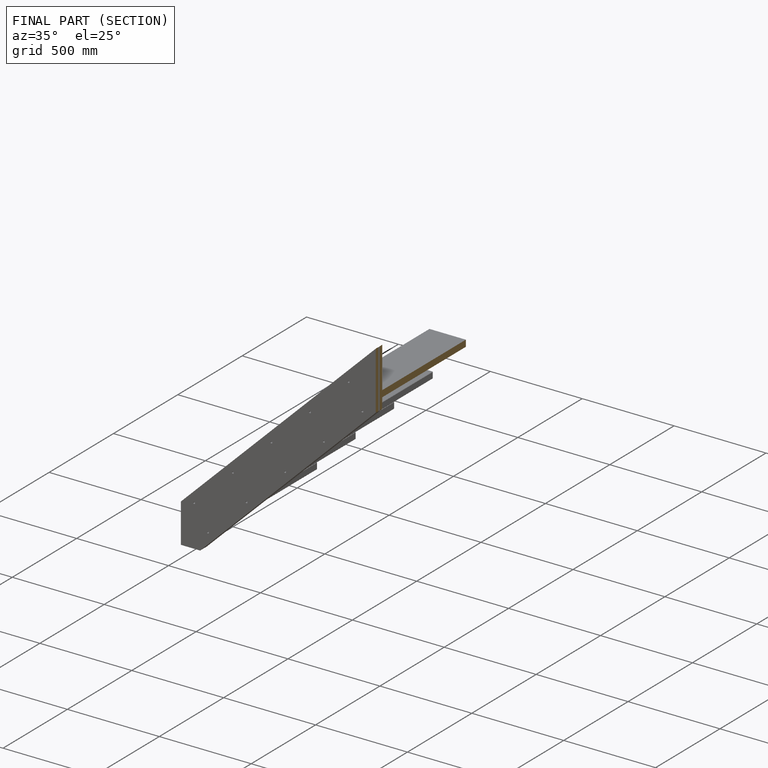
[diagram: finished part — half-section view (interior)]
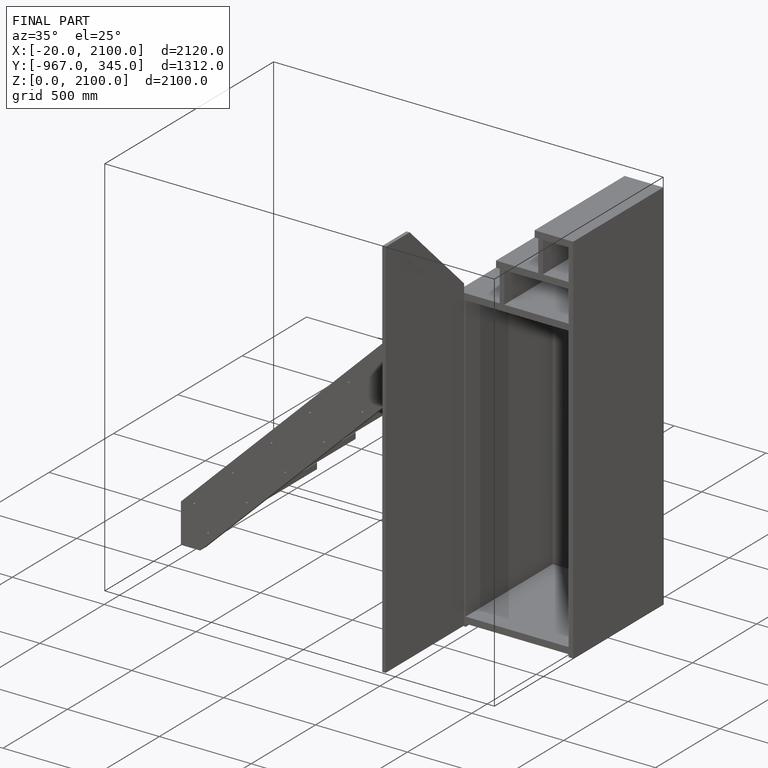
[diagram: finished part — iso view with bounding-box wireframe]
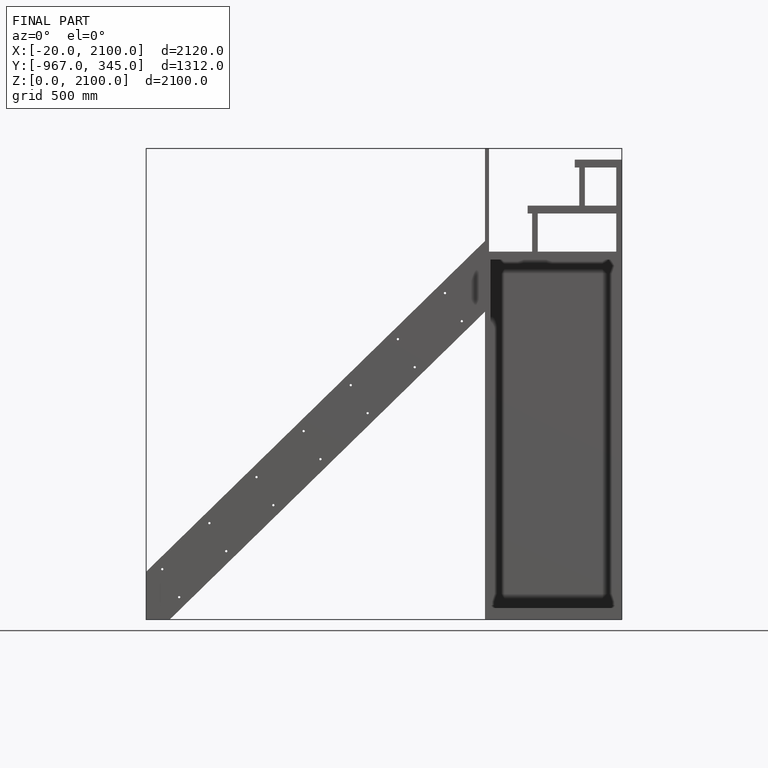
[diagram: finished part — front view with bounding-box wireframe]
